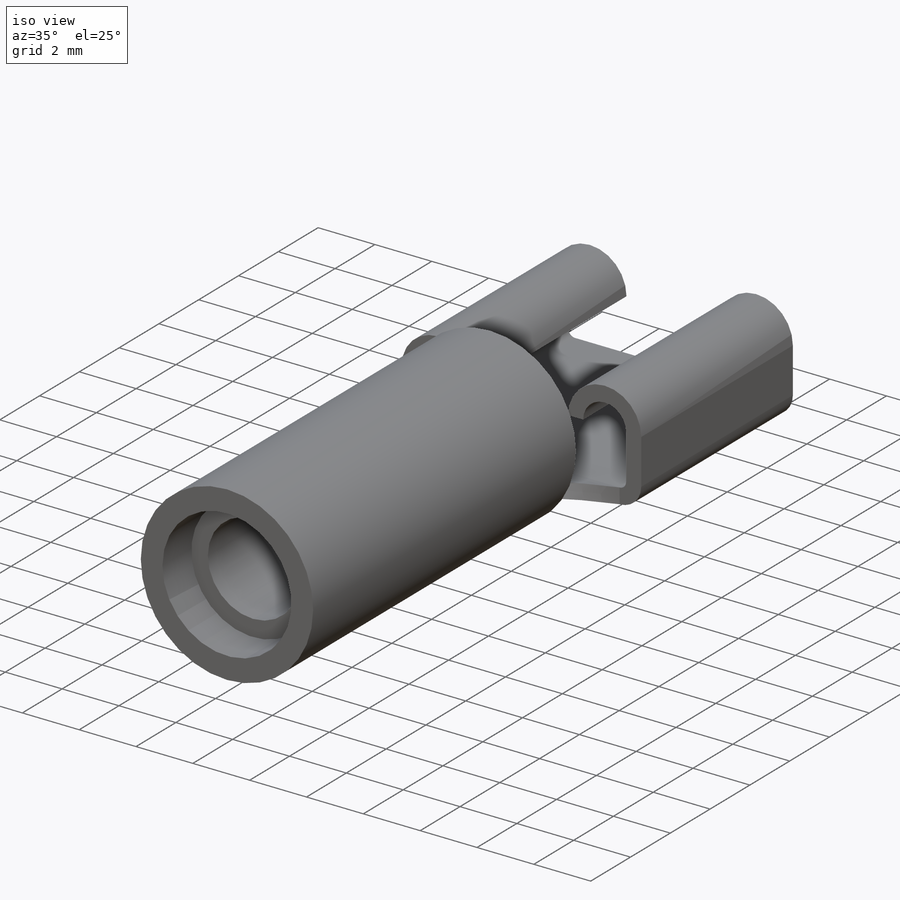
[diagram: iso view]
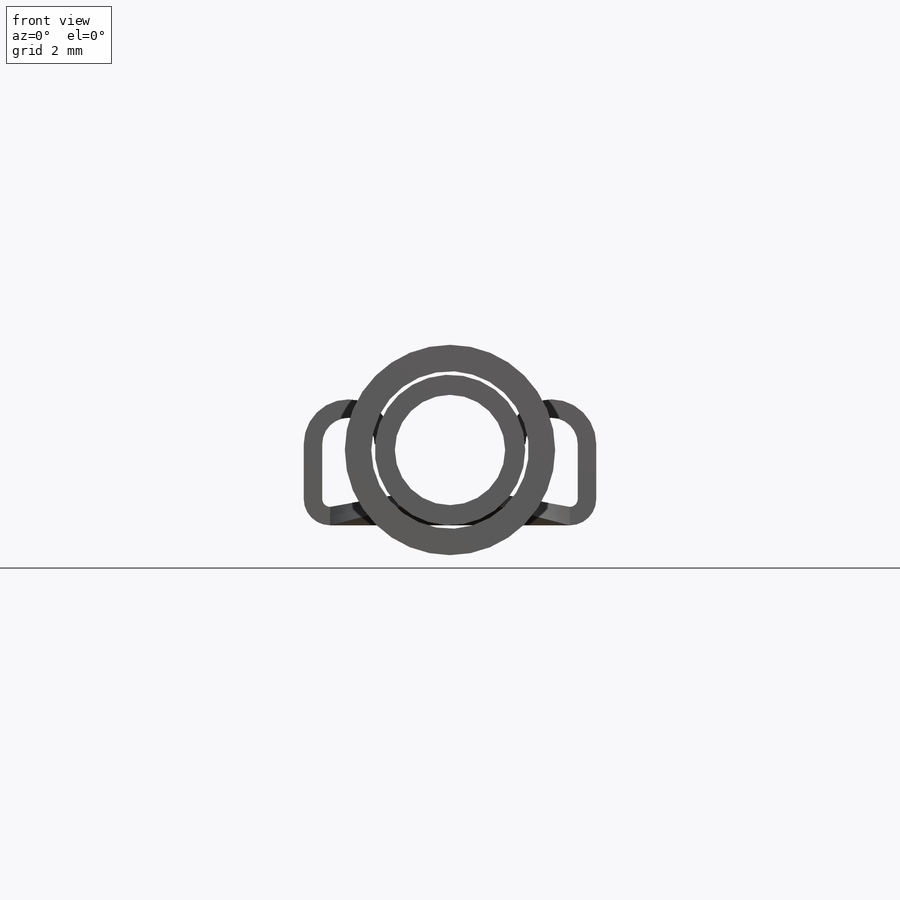
[diagram: front view]
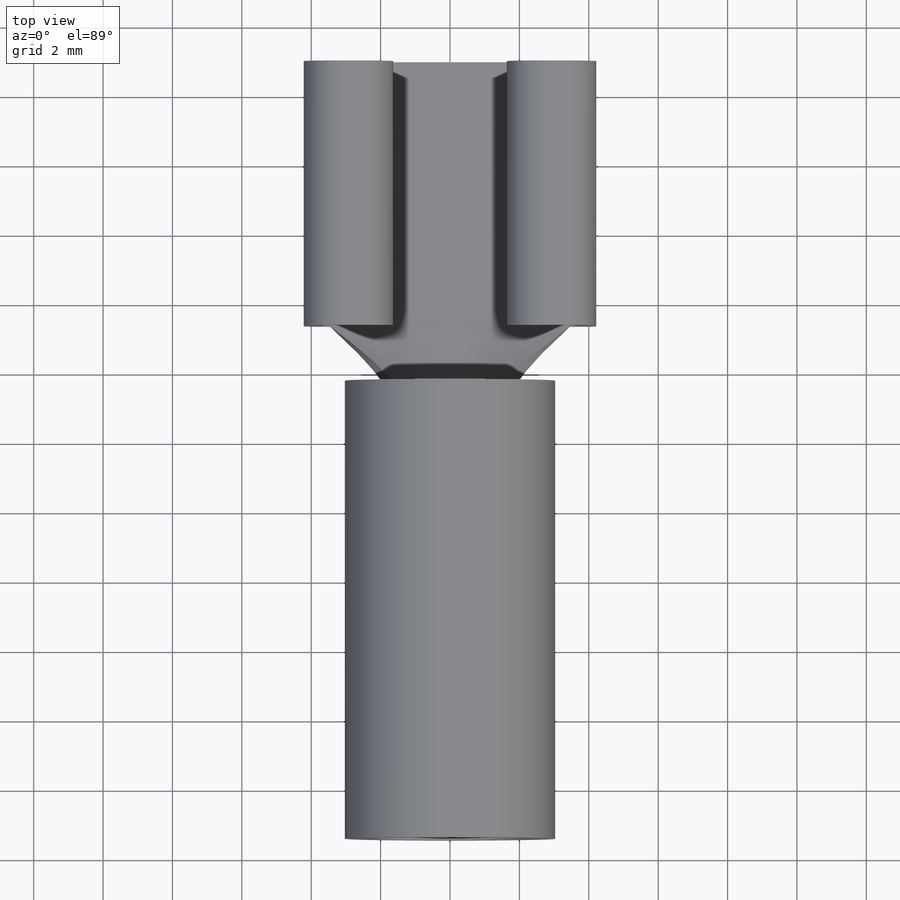
[diagram: top view]
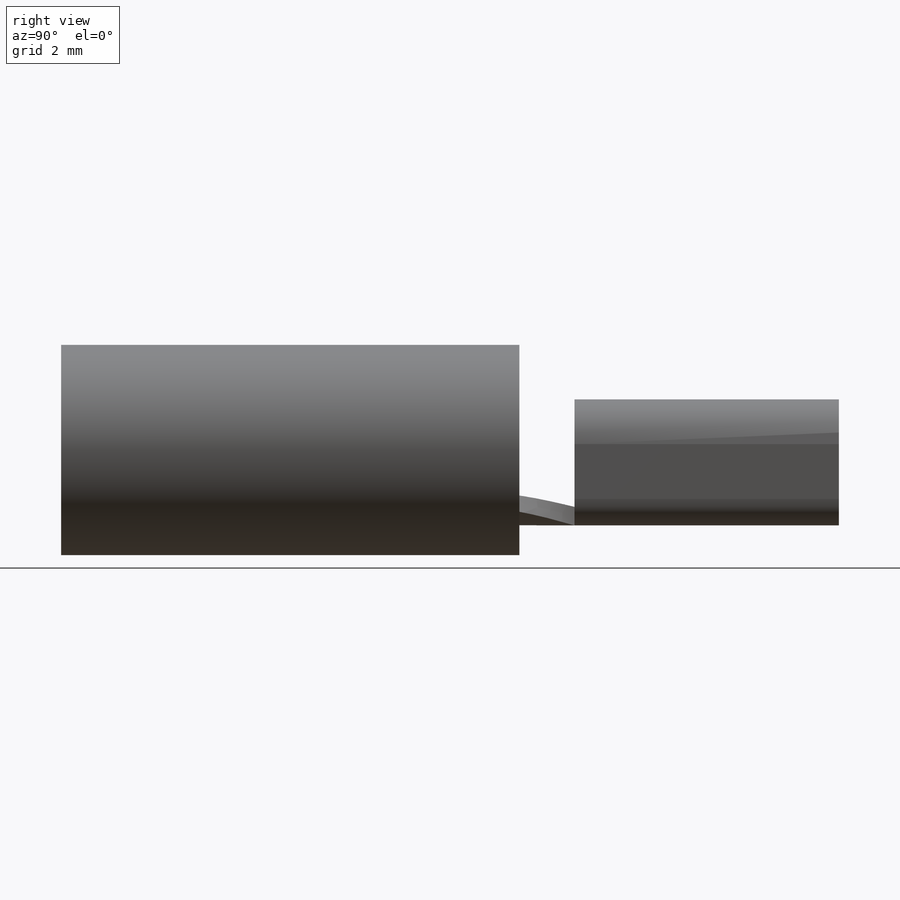
[diagram: right view]
SOLIDWORKS PART (.sldprt)
format: sldprt  version: not decoded by parser v0  size: 718,848 bytes
history: native  units: mm
features: sketch x14, extrude x8, fillet x7, plane x4, material x1, cut_extrude x1 (+12 scaffold rows collapsed)
feature tree (47):
  scaffold x12  (default folders/planes/origin — collapsed)
  material  "Material <not specified>"
  sketch  "Sketch1"  dims[c1.D2=4.9276mm c1.D1=9.8552mm c2.D2=8.4328mm c2.D3=~2.45897mm c2.D4=4.7752mm c2.D5=0.7112mm c2.D6=0.7112mm c3.D4=4.7752mm]
  extrude  "Extrude1"  Depth=2.72mm
  plane  "Plane1"  Offset=6.88mm
  sketch  "Sketch2"  dims[c1.D3=3.0734mm c1.D1=6.1468mm c1.D2=2.7686mm c1.D4=0.7112mm c2.D1=0.7112mm]
  sketch  "Sketch3"  dims[D1=0.0mm D2=0.0mm]
  sketch  "Sketch"
  sketch  "Sketch4"
  plane  "Plane2"  Offset=22.99mm
  sketch  "Sketch5"  dims[D3=3.18mm D4=4.34mm D2=4.89mm D1=0.0mm]
  extrude  "Extrude2"  Depth=4.85mm
  sketch  "Sketch6"  dims[c1.D1=~1.289397mm c1.D2=2.0mm c1.D6=2.3622mm c1.D7=3.0734mm c2.D1=9.8552mm c2.D2=~0.711199mm c2.D3=~0.711198mm c2.D4=~3.632199mm c2.D5=~0.711201mm c3.D1=~8.432803mm c3.D8=~2.87334mm c3.D9=~2.456318mm c3.D10=0.7112mm c3.D3=~0.711198mm c4.D1=9.8552mm c4.D2=0.7112mm c4.D3=4.2164mm c5.D3=~0.026548deg c5.D4=~0.873339mm c6.D4=~179.973483deg c7.D4=~1.16692mm c8.D4=~0.026517deg c9.D4=~0.71066mm c9.D3=~3.632741mm c9.D5=0.7112mm c9.D2=~0.71066mm c10.D3=0.7112mm c10.D4=~3.632741mm c10.D2=5.0546mm]
  extrude  "Extrude3"  [1 undecoded]
  sketch  "Sketch7"  dims[D1=0.7112mm D2=0.7112mm]
  cut_extrude  "Extrude4"  Depth=1.27mm
  fillet  "Fillet1"  Radius=2mm
  fillet  "Fillet2"  Radius=1.27mm
  fillet  "Fillet3"  Radius=1.27mm
  fillet  "Fillet4"  Radius=1.98mm
  fillet  "Fillet5"  Radius=1.28939mm
  fillet  "Fillet6"  Radius=0.56mm
  extrude  "Extrude5"  [1 undecoded]
  sketch  "Sketch"  dims[D1=6.6mm]
  sketch  "Sketch8"  dims[c1.D2=0.762mm c1.D3=0.7554mm c1.D4=1.2888mm c1.D1=0.5334mm c2.D4=~3.512262mm c2.D1=0.5334mm]
  extrude  "Extrude6"  Depth=7.62mm
  fillet  "Fillet7"  Radius=0.23mm
  sketch  "Sketch9"  dims[D2=~0.533402mm D1=0.0mm]
  plane  "Plane3"  Offset=1.27mm
  sketch  "Sketch10"  dims[D2=~1.307897mm D1=0.0mm]
  extrude  "Loft5"  [1 undecoded]
  plane  "Plane4"  Offset=0.3mm
  sketch  "Sketch11"  dims[D1=0.1mm D2=0.762mm]
  extrude  "Boss-Extrude1"  Depth=13.208mm
  sketch  "Sketch12"  dims[D1=0.0mm]
  extrude  "Boss-Extrude2"  Depth=5mm
decode coverage: 25 of 30 modeling features carry decoded parameters
note: ~ marks probable driven/reference dimensions
note: 3 parameter values undecoded
summary: no parameter record found for 3 features
note: suppression state not decoded; provenance and decode notes live in map.json
